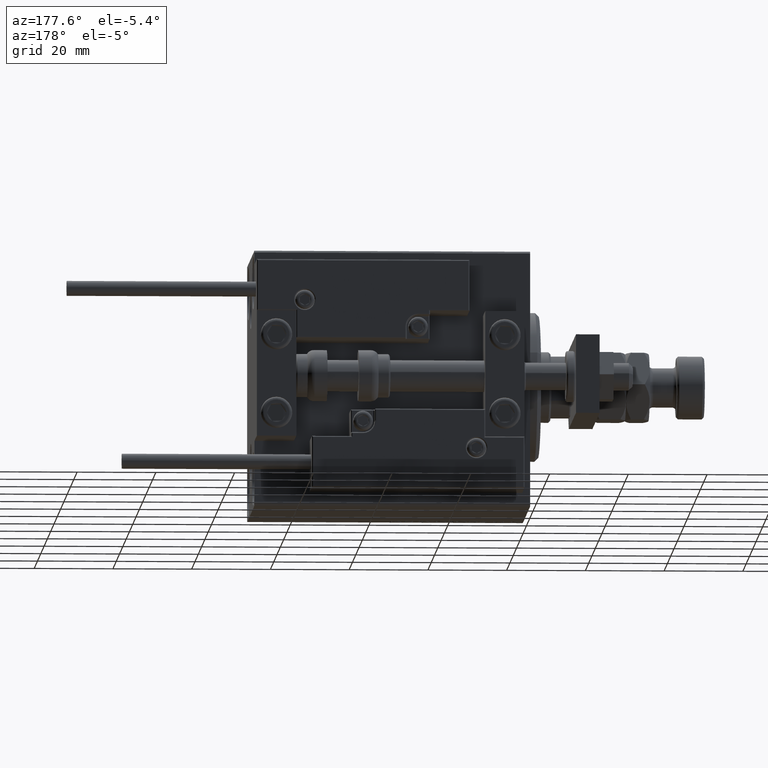
[diagram: clean part render]
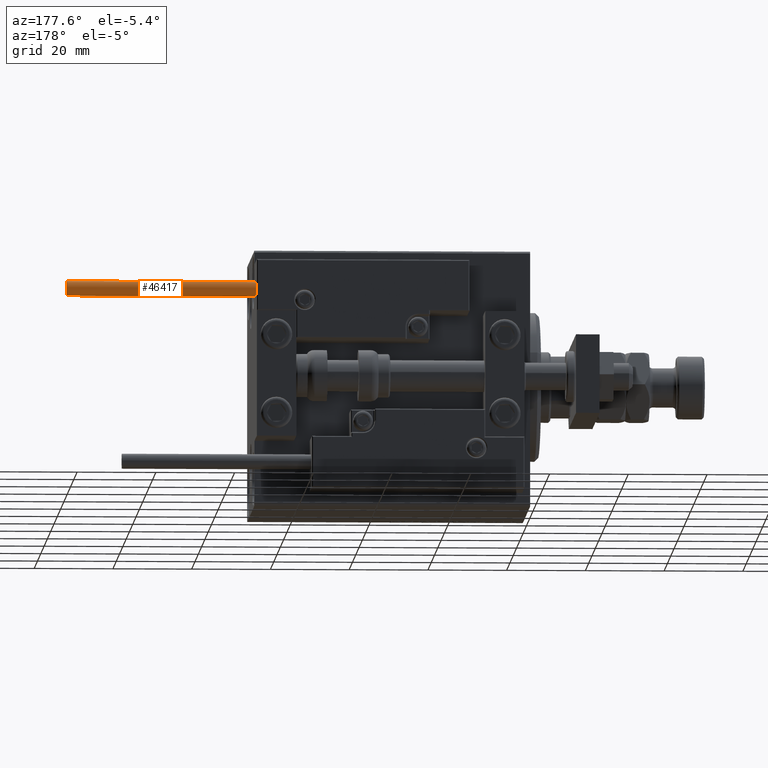
[diagram: same view with one face highlighted and labeled with its STEP entity id]
A machine part, auxiliary view. The second image highlights one B-rep face of the part: STEP entity #46417.
In plain terms, the highlighted cylindrical surface (edge-blend (fillet) strip) has radius 1.9 mm, axis along (-1, -0, 0).
Its self-contained STEP definition (entity closure, byte-faithful):
#456 = EDGE_CURVE ( 'NONE', #35415, #39469, #8396, .T. ) ;
#2019 = DIRECTION ( 'NONE',  ( 0.000000000000000000, 0.000000000000000000, 1.000000000000000000 ) ) ;
#3258 = EDGE_LOOP ( 'NONE', ( #30517, #19332, #30220, #44919 ) ) ;
#5491 = CARTESIAN_POINT ( 'NONE',  ( 1.899999999999999467, 2.326828918379970872E-16, 0.000000000000000000 ) ) ;
#5953 = CARTESIAN_POINT ( 'NONE',  ( 0.000000000000000000, 0.000000000000000000, 48.00000000000000000 ) ) ;
#6799 = DIRECTION ( 'NONE',  ( 0.000000000000000000, 0.000000000000000000, 1.000000000000000000 ) ) ;
#6890 = DIRECTION ( 'NONE',  ( -0.000000000000000000, -0.000000000000000000, -1.000000000000000000 ) ) ;
#8396 = CIRCLE ( 'NONE', #39376, 1.899999999999999467 ) ;
#10914 = VERTEX_POINT ( 'NONE', #11920 ) ;
#11920 = CARTESIAN_POINT ( 'NONE',  ( -1.899999999999999467, 0.000000000000000000, 48.00000000000000000 ) ) ;
#13027 = DIRECTION ( 'NONE',  ( -0.000000000000000000, -0.000000000000000000, -1.000000000000000000 ) ) ;
#13279 = CARTESIAN_POINT ( 'NONE',  ( 1.899999999999999467, 2.326828918379970872E-16, 48.00000000000000000 ) ) ;
#15141 = CARTESIAN_POINT ( 'NONE',  ( -1.899999999999999467, 0.000000000000000000, 48.00000000000000000 ) ) ;
#17992 = EDGE_CURVE ( 'NONE', #21931, #35415, #49166, .T. ) ;
#18691 = FACE_OUTER_BOUND ( 'NONE', #3258, .T. ) ;
#18944 = CARTESIAN_POINT ( 'NONE',  ( 0.000000000000000000, 0.000000000000000000, 48.00000000000000000 ) ) ;
#19332 = ORIENTED_EDGE ( 'NONE', *, *, #17992, .T. ) ;
#21931 = VERTEX_POINT ( 'NONE', #44705 ) ;
#25124 = EDGE_CURVE ( 'NONE', #10914, #39469, #30133, .T. ) ;
#26409 = AXIS2_PLACEMENT_3D ( 'NONE', #5953, #2019, #44751 ) ;
#30133 = LINE ( 'NONE', #15141, #40860 ) ;
#30220 = ORIENTED_EDGE ( 'NONE', *, *, #456, .T. ) ;
#30517 = ORIENTED_EDGE ( 'NONE', *, *, #33820, .F. ) ;
#33820 = EDGE_CURVE ( 'NONE', #21931, #10914, #41476, .T. ) ;
#34858 = DIRECTION ( 'NONE',  ( 1.000000000000000000, 0.000000000000000000, 0.000000000000000000 ) ) ;
#35415 = VERTEX_POINT ( 'NONE', #5491 ) ;
#39376 = AXIS2_PLACEMENT_3D ( 'NONE', #42703, #6799, #34858 ) ;
#39469 = VERTEX_POINT ( 'NONE', #42332 ) ;
#40860 = VECTOR ( 'NONE', #50006, 1000.000000000000000 ) ;
#41434 = VECTOR ( 'NONE', #13027, 1000.000000000000000 ) ;
#41476 = CIRCLE ( 'NONE', #26409, 1.899999999999999467 ) ;
#42332 = CARTESIAN_POINT ( 'NONE',  ( -1.899999999999999467, 0.000000000000000000, 0.000000000000000000 ) ) ;
#42703 = CARTESIAN_POINT ( 'NONE',  ( 0.000000000000000000, 0.000000000000000000, 0.000000000000000000 ) ) ;
#42800 = CYLINDRICAL_SURFACE ( 'NONE', #50171, 1.899999999999999467 ) ;
#44705 = CARTESIAN_POINT ( 'NONE',  ( 1.899999999999999467, 2.326828918379970872E-16, 48.00000000000000000 ) ) ;
#44751 = DIRECTION ( 'NONE',  ( 1.000000000000000000, 0.000000000000000000, 0.000000000000000000 ) ) ;
#44919 = ORIENTED_EDGE ( 'NONE', *, *, #25124, .F. ) ;
#46417 = ADVANCED_FACE ( 'NONE', ( #18691 ), #42800, .T. ) ;
#49166 = LINE ( 'NONE', #13279, #41434 ) ;
#50006 = DIRECTION ( 'NONE',  ( -0.000000000000000000, -0.000000000000000000, -1.000000000000000000 ) ) ;
#50171 = AXIS2_PLACEMENT_3D ( 'NONE', #18944, #6890, #50906 ) ;
#50906 = DIRECTION ( 'NONE',  ( -1.000000000000000000, 0.000000000000000000, 0.000000000000000000 ) ) ;